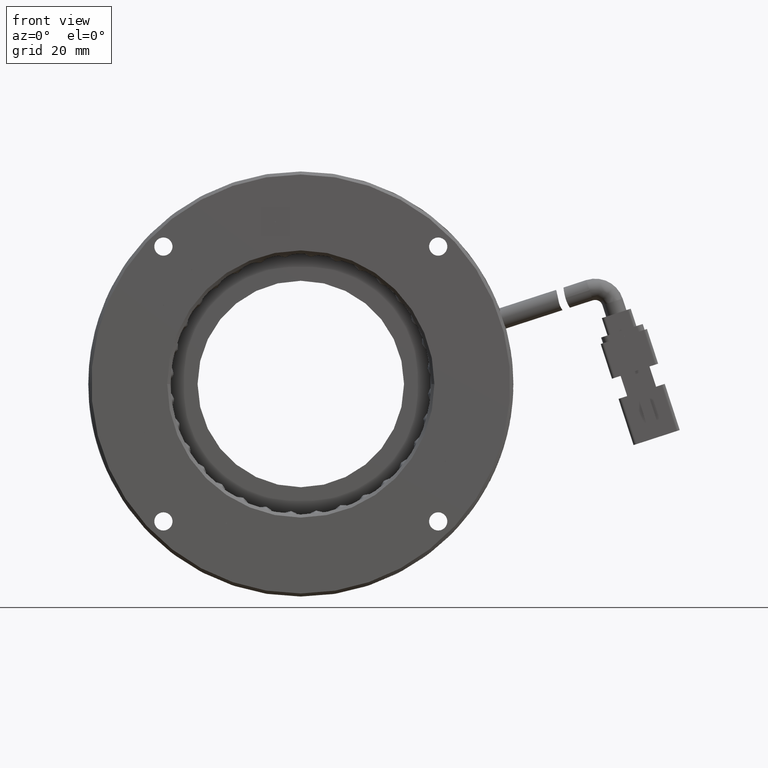
[diagram: clean part render]
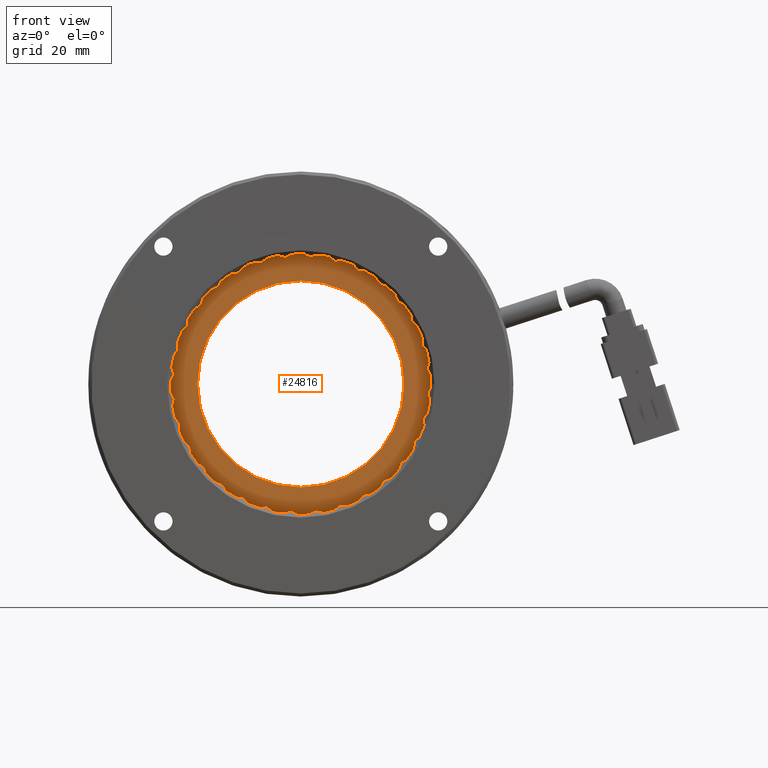
[diagram: same view with one face highlighted and labeled with its STEP entity id]
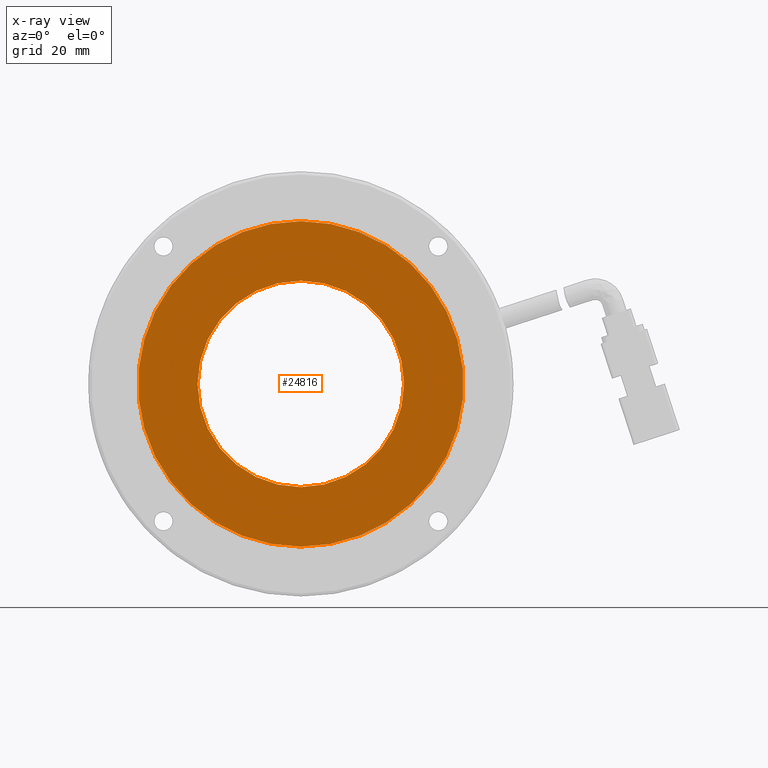
[diagram: x-ray of the same camera — body ghosted, the highlighted face saturated]
A machine part, front view. The second image highlights one B-rep face of the part: STEP entity #24816.
The next image is the same camera in x-ray: the body ghosted, the highlighted face saturated — about 0% of this face is hidden behind the body in this view.
In plain terms, the highlighted planar face has unit normal (0, 1, 0).
Its self-contained STEP definition (entity closure, byte-faithful):
#579 = PLANE ( 'NONE',  #15600 ) ;
#728 = VERTEX_POINT ( 'NONE', #29379 ) ;
#747 = DIRECTION ( 'NONE',  ( 0.0000000000000000000, 1.000000000000000000, 0.0000000000000000000 ) ) ;
#2129 = DIRECTION ( 'NONE',  ( 0.0000000000000000000, 0.0000000000000000000, -1.000000000000000000 ) ) ;
#2694 = FACE_OUTER_BOUND ( 'NONE', #24684, .T. ) ;
#3442 = CIRCLE ( 'NONE', #6797, 26.80000000000000100 ) ;
#3443 = CARTESIAN_POINT ( 'NONE',  ( -5.709292144904338800, 11.26020291540426400, 26.79999999999997900 ) ) ;
#4033 = ORIENTED_EDGE ( 'NONE', *, *, #14421, .T. ) ;
#5240 = EDGE_CURVE ( 'NONE', #29837, #728, #3442, .T. ) ;
#6797 = AXIS2_PLACEMENT_3D ( 'NONE', #32420, #32284, #32151 ) ;
#8073 = AXIS2_PLACEMENT_3D ( 'NONE', #17553, #39392, #20688 ) ;
#8823 = ORIENTED_EDGE ( 'NONE', *, *, #17893, .F. ) ;
#9901 = FACE_BOUND ( 'NONE', #30399, .T. ) ;
#10362 = VERTEX_POINT ( 'NONE', #23395 ) ;
#12974 = CARTESIAN_POINT ( 'NONE',  ( -29.70929214490434600, 11.26020291540426400, -2.081668171172168500E-014 ) ) ;
#14421 = EDGE_CURVE ( 'NONE', #32188, #10362, #14773, .T. ) ;
#14773 = CIRCLE ( 'NONE', #8073, 17.00000000000000000 ) ;
#15269 = AXIS2_PLACEMENT_3D ( 'NONE', #39348, #20642, #2129 ) ;
#15600 = AXIS2_PLACEMENT_3D ( 'NONE', #12974, #34775, #16106 ) ;
#16106 = DIRECTION ( 'NONE',  ( 0.0000000000000000000, -0.0000000000000000000, 1.000000000000000000 ) ) ;
#16674 = AXIS2_PLACEMENT_3D ( 'NONE', #19231, #747, #22360 ) ;
#16717 = CIRCLE ( 'NONE', #15269, 26.80000000000000100 ) ;
#17553 = CARTESIAN_POINT ( 'NONE',  ( -5.709292144904342300, 11.26020291540426400, -2.081668171172168500E-014 ) ) ;
#17893 = EDGE_CURVE ( 'NONE', #728, #29837, #16717, .T. ) ;
#19231 = CARTESIAN_POINT ( 'NONE',  ( -5.709292144904342300, 11.26020291540426400, -2.081668171172168500E-014 ) ) ;
#20642 = DIRECTION ( 'NONE',  ( 0.0000000000000000000, 1.000000000000000000, 0.0000000000000000000 ) ) ;
#20688 = DIRECTION ( 'NONE',  ( 0.0000000000000000000, 0.0000000000000000000, -1.000000000000000000 ) ) ;
#20789 = EDGE_CURVE ( 'NONE', #10362, #32188, #24706, .T. ) ;
#22360 = DIRECTION ( 'NONE',  ( 0.0000000000000000000, 0.0000000000000000000, -1.000000000000000000 ) ) ;
#23395 = CARTESIAN_POINT ( 'NONE',  ( -5.709292144904342300, 11.26020291540426400, -17.00000000000002100 ) ) ;
#24684 = EDGE_LOOP ( 'NONE', ( #8823, #30594 ) ) ;
#24706 = CIRCLE ( 'NONE', #16674, 17.00000000000000000 ) ;
#24816 = ADVANCED_FACE ( 'NONE', ( #2694, #9901 ), #579, .F. ) ;
#29379 = CARTESIAN_POINT ( 'NONE',  ( -5.709292144904342300, 11.26020291540426400, -26.80000000000002200 ) ) ;
#29837 = VERTEX_POINT ( 'NONE', #3443 ) ;
#30399 = EDGE_LOOP ( 'NONE', ( #38373, #4033 ) ) ;
#30594 = ORIENTED_EDGE ( 'NONE', *, *, #5240, .F. ) ;
#32151 = DIRECTION ( 'NONE',  ( 0.0000000000000000000, 0.0000000000000000000, -1.000000000000000000 ) ) ;
#32188 = VERTEX_POINT ( 'NONE', #32471 ) ;
#32284 = DIRECTION ( 'NONE',  ( 0.0000000000000000000, 1.000000000000000000, 0.0000000000000000000 ) ) ;
#32420 = CARTESIAN_POINT ( 'NONE',  ( -5.709292144904342300, 11.26020291540426400, -2.081668171172168500E-014 ) ) ;
#32471 = CARTESIAN_POINT ( 'NONE',  ( -5.709292144904340600, 11.26020291540426400, 16.99999999999997900 ) ) ;
#34775 = DIRECTION ( 'NONE',  ( 0.0000000000000000000, 1.000000000000000000, 0.0000000000000000000 ) ) ;
#38373 = ORIENTED_EDGE ( 'NONE', *, *, #20789, .T. ) ;
#39348 = CARTESIAN_POINT ( 'NONE',  ( -5.709292144904342300, 11.26020291540426400, -2.081668171172168500E-014 ) ) ;
#39392 = DIRECTION ( 'NONE',  ( 0.0000000000000000000, 1.000000000000000000, 0.0000000000000000000 ) ) ;